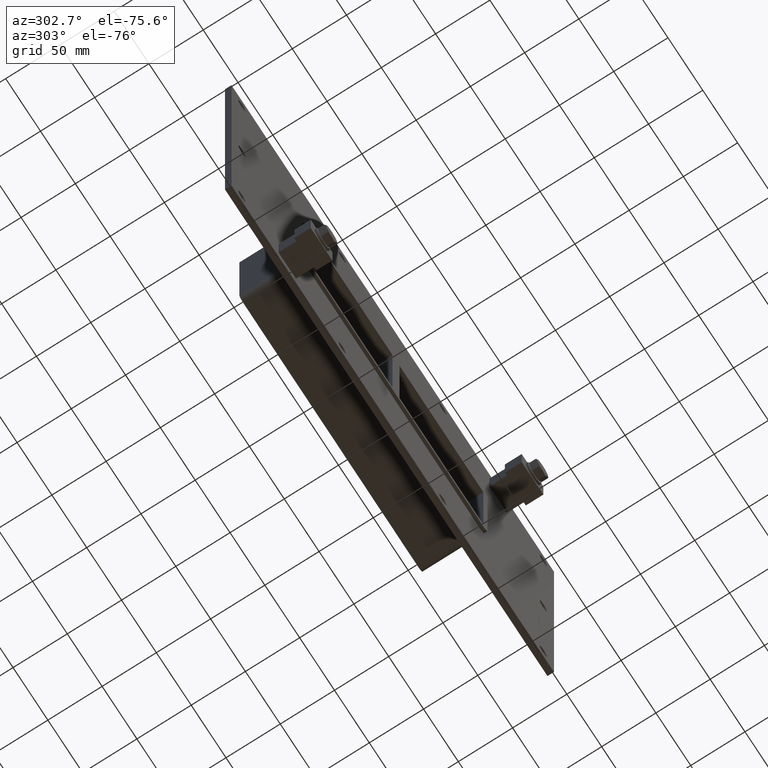
[diagram: clean part render]
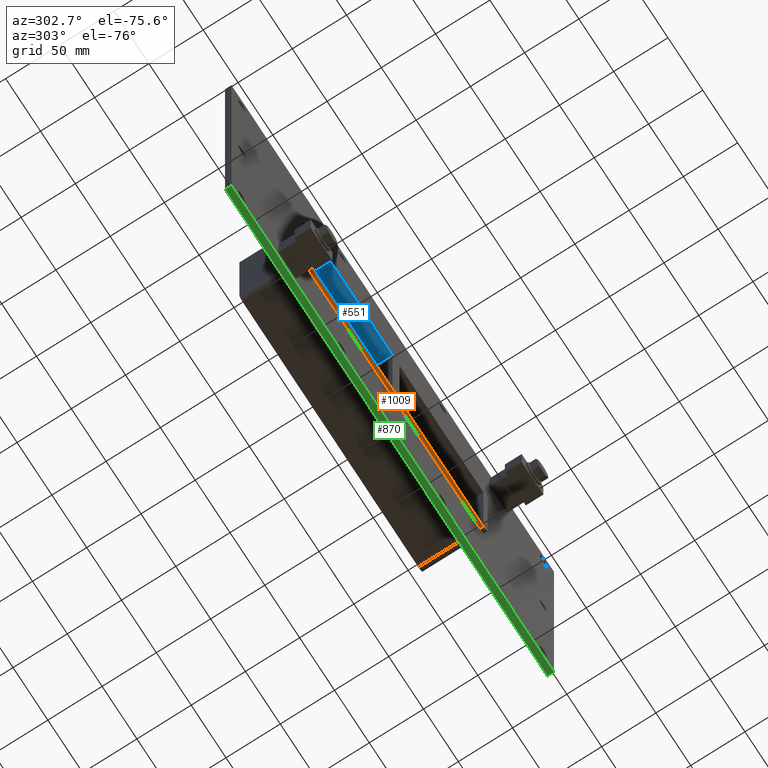
[diagram: same view with three faces highlighted in distinct colors, each labeled with its STEP entity id]
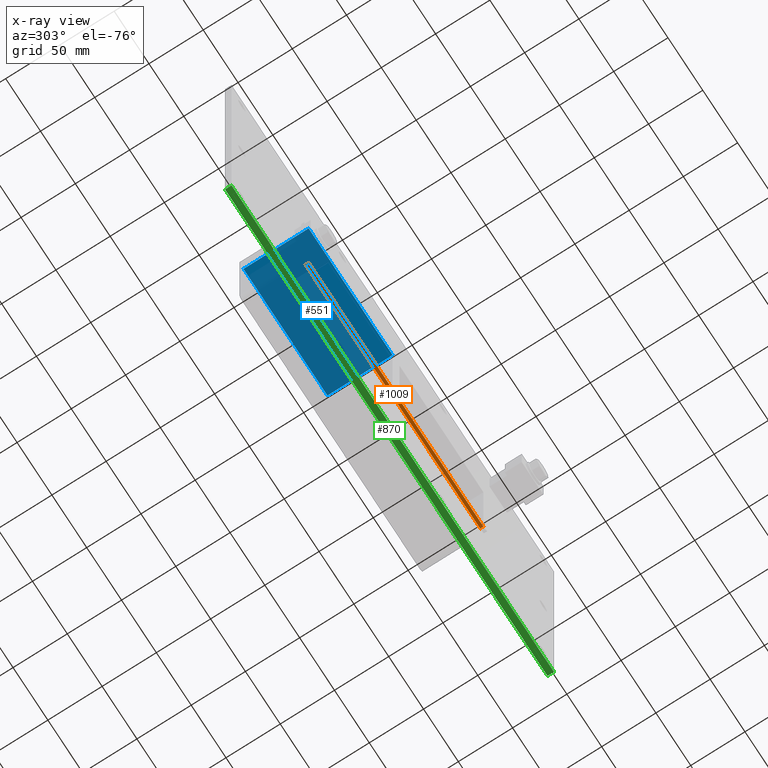
[diagram: x-ray of the same camera — body ghosted, the three highlighted faces saturated]
A machine part, auxiliary view with three faces highlighted in distinct colors.
The next image is the same camera in x-ray (body ghosted, the three faces saturated) — at least one of them is partly hidden behind the body in this view.
Their STEP definitions:

[orange] entity #1009 — the highlighted planar face has unit normal (0, 0, -1).
#797=CARTESIAN_POINT('',(125.5,0.0,-56.500000000000057));
#798=VERTEX_POINT('',#797);
#806=CARTESIAN_POINT('',(-125.5,0.0,-56.500000000000057));
#807=VERTEX_POINT('',#806);
#808=CARTESIAN_POINT('',(-125.49999999999999,0.0,-56.500000000000057));
#809=DIRECTION('',(1.0,0.0,0.0));
#810=VECTOR('',#809,251.0);
#811=LINE('',#808,#810);
#812=EDGE_CURVE('',#807,#798,#811,.T.);
#936=CARTESIAN_POINT('',(125.5,-3.0,-56.500000000000057));
#937=VERTEX_POINT('',#936);
#945=CARTESIAN_POINT('',(125.5,-3.0,-56.500000000000057));
#946=DIRECTION('',(0.0,1.0,0.0));
#947=VECTOR('',#946,3.0);
#948=LINE('',#945,#947);
#949=EDGE_CURVE('',#937,#798,#948,.T.);
#986=CARTESIAN_POINT('',(131.50000000000003,0.0,-56.500000000000057));
#987=DIRECTION('',(0.0,0.0,-1.0));
#988=DIRECTION('',(-1.0,0.0,0.0));
#989=AXIS2_PLACEMENT_3D('',#986,#987,#988);
#990=PLANE('',#989);
#991=ORIENTED_EDGE('',*,*,#812,.T.);
#992=ORIENTED_EDGE('',*,*,#949,.F.);
#993=CARTESIAN_POINT('',(-125.5,-3.0,-56.500000000000057));
#994=VERTEX_POINT('',#993);
#995=CARTESIAN_POINT('',(-125.49999999999997,-3.0,-56.500000000000057));
#996=DIRECTION('',(1.0,0.0,0.0));
#997=VECTOR('',#996,251.0);
#998=LINE('',#995,#997);
#999=EDGE_CURVE('',#994,#937,#998,.T.);
#1000=ORIENTED_EDGE('',*,*,#999,.F.);
#1001=CARTESIAN_POINT('',(-125.5,0.0,-56.500000000000057));
#1002=DIRECTION('',(0.0,-1.0,0.0));
#1003=VECTOR('',#1002,3.0);
#1004=LINE('',#1001,#1003);
#1005=EDGE_CURVE('',#807,#994,#1004,.T.);
#1006=ORIENTED_EDGE('',*,*,#1005,.F.);
#1007=EDGE_LOOP('',(#991,#992,#1000,#1006));
#1008=FACE_OUTER_BOUND('',#1007,.T.);
#1009=ADVANCED_FACE('',(#1008),#990,.T.);

[blue] entity #551 — the highlighted planar face has unit normal (0, 0, 1).
#355=CARTESIAN_POINT('',(-4.999999999999236,-3.0,50.500000000000007));
#356=VERTEX_POINT('',#355);
#363=CARTESIAN_POINT('',(-4.999999999999236,57.0,50.500000000000007));
#364=VERTEX_POINT('',#363);
#365=CARTESIAN_POINT('',(-4.999999999999236,57.000000000000007,50.500000000000043));
#366=DIRECTION('',(0.0,-1.0,0.0));
#367=VECTOR('',#366,60.000000000000007);
#368=LINE('',#365,#367);
#369=EDGE_CURVE('',#364,#356,#368,.T.);
#521=CARTESIAN_POINT('',(-125.5,0.0,50.500000000000043));
#522=DIRECTION('',(0.0,0.0,1.0));
#523=DIRECTION('',(1.0,0.0,0.0));
#524=AXIS2_PLACEMENT_3D('',#521,#522,#523);
#525=PLANE('',#524);
#526=ORIENTED_EDGE('',*,*,#369,.T.);
#527=CARTESIAN_POINT('',(-125.49999999999999,-3.0,50.500000000000007));
#528=VERTEX_POINT('',#527);
#529=CARTESIAN_POINT('',(-125.49999999999999,-3.0,50.500000000000043));
#530=DIRECTION('',(1.0,0.0,0.0));
#531=VECTOR('',#530,120.50000000000075);
#532=LINE('',#529,#531);
#533=EDGE_CURVE('',#528,#356,#532,.T.);
#534=ORIENTED_EDGE('',*,*,#533,.F.);
#535=CARTESIAN_POINT('',(-125.49999999999999,57.0,50.500000000000007));
#536=VERTEX_POINT('',#535);
#537=CARTESIAN_POINT('',(-125.5,-3.0,50.500000000000007));
#538=DIRECTION('',(0.0,1.0,0.0));
#539=VECTOR('',#538,60.0);
#540=LINE('',#537,#539);
#541=EDGE_CURVE('',#528,#536,#540,.T.);
#542=ORIENTED_EDGE('',*,*,#541,.T.);
#543=CARTESIAN_POINT('',(-4.999999999999233,57.0,50.500000000000043));
#544=DIRECTION('',(-1.0,0.0,0.0));
#545=VECTOR('',#544,120.50000000000075);
#546=LINE('',#543,#545);
#547=EDGE_CURVE('',#364,#536,#546,.T.);
#548=ORIENTED_EDGE('',*,*,#547,.F.);
#549=EDGE_LOOP('',(#526,#534,#542,#548));
#550=FACE_OUTER_BOUND('',#549,.T.);
#551=ADVANCED_FACE('',(#550),#525,.F.);

[green] entity #870 — the highlighted planar face has unit normal (0, 0, -1).
#567=CARTESIAN_POINT('',(231.50000000000003,6.000000000000001,-156.5));
#568=VERTEX_POINT('',#567);
#575=CARTESIAN_POINT('',(-231.50000000000003,6.000000000000001,-156.5));
#576=VERTEX_POINT('',#575);
#577=CARTESIAN_POINT('',(231.50000000000003,6.000000000000001,-156.5));
#578=DIRECTION('',(-1.0,0.0,0.0));
#579=VECTOR('',#578,463.00000000000006);
#580=LINE('',#577,#579);
#581=EDGE_CURVE('',#568,#576,#580,.T.);
#707=CARTESIAN_POINT('',(-231.50000000000003,0.0,-156.5));
#708=VERTEX_POINT('',#707);
#715=CARTESIAN_POINT('',(231.50000000000003,0.0,-156.5));
#716=VERTEX_POINT('',#715);
#717=CARTESIAN_POINT('',(231.50000000000003,0.0,-156.5));
#718=DIRECTION('',(-1.0,0.0,0.0));
#719=VECTOR('',#718,463.00000000000006);
#720=LINE('',#717,#719);
#721=EDGE_CURVE('',#716,#708,#720,.T.);
#845=CARTESIAN_POINT('',(-231.50000000000003,0.0,-156.5));
#846=DIRECTION('',(0.0,1.0,0.0));
#847=VECTOR('',#846,6.000000000000001);
#848=LINE('',#845,#847);
#849=EDGE_CURVE('',#708,#576,#848,.T.);
#854=CARTESIAN_POINT('',(231.50000000000003,0.0,-156.5));
#855=DIRECTION('',(0.0,0.0,-1.0));
#856=DIRECTION('',(-1.0,0.0,0.0));
#857=AXIS2_PLACEMENT_3D('',#854,#855,#856);
#858=PLANE('',#857);
#859=ORIENTED_EDGE('',*,*,#721,.T.);
#860=ORIENTED_EDGE('',*,*,#849,.T.);
#861=ORIENTED_EDGE('',*,*,#581,.F.);
#862=CARTESIAN_POINT('',(231.50000000000003,0.0,-156.5));
#863=DIRECTION('',(0.0,1.0,0.0));
#864=VECTOR('',#863,6.000000000000001);
#865=LINE('',#862,#864);
#866=EDGE_CURVE('',#716,#568,#865,.T.);
#867=ORIENTED_EDGE('',*,*,#866,.F.);
#868=EDGE_LOOP('',(#859,#860,#861,#867));
#869=FACE_OUTER_BOUND('',#868,.T.);
#870=ADVANCED_FACE('',(#869),#858,.T.);